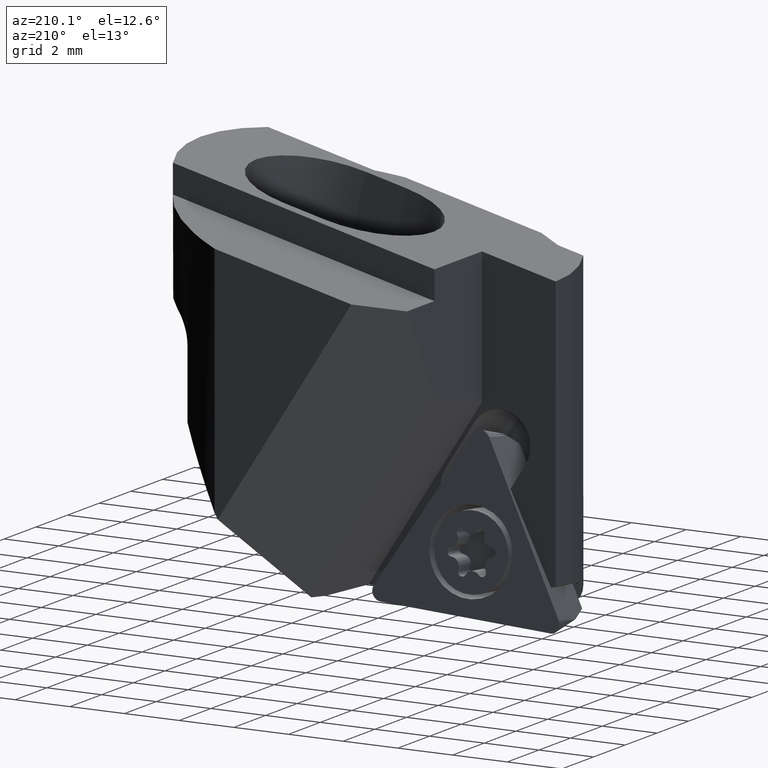
[diagram: clean part render]
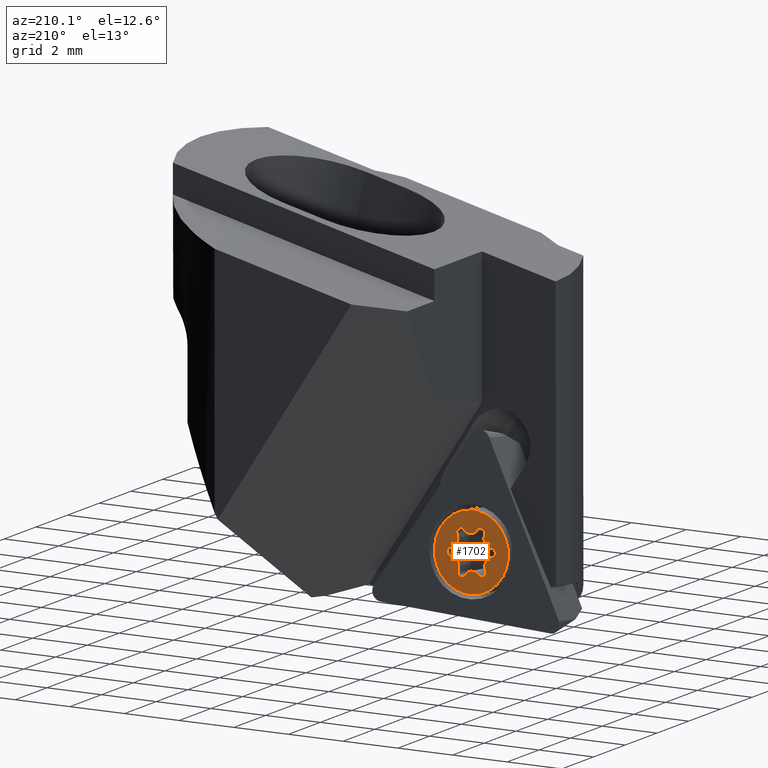
[diagram: same view with one face highlighted and labeled with its STEP entity id]
A machine part, auxiliary view. The second image highlights one B-rep face of the part: STEP entity #1702.
In plain terms, the highlighted planar face has unit normal (0.0046, -0.9962, -0.087).
Its self-contained STEP definition (entity closure, byte-faithful):
#836=VERTEX_POINT('NONE',#2392);
#862=EDGE_CURVE('NONE',#1880,#1708,#2420,.T.);
#884=VERTEX_POINT('NONE',#2444);
#938=VERTEX_POINT('NONE',#2512);
#1088=EDGE_CURVE('NONE',#2076,#1826,#2671,.T.);
#1096=EDGE_CURVE('NONE',#938,#1880,#2680,.T.);
#1108=VERTEX_POINT('',#2694);
#1120=EDGE_CURVE('NONE',#1108,#2336,#2706,.T.);
#1130=VERTEX_POINT('NONE',#2718);
#1154=EDGE_CURVE('NONE',#1826,#1894,#2745,.T.);
#1198=EDGE_CURVE('NONE',#884,#1798,#2794,.T.);
#1304=EDGE_CURVE('NONE',#1130,#1498,#2912,.T.);
#1346=EDGE_CURVE('NONE',#1818,#884,#2958,.T.);
#1436=VERTEX_POINT('NONE',#3058);
#1486=EDGE_CURVE('NONE',#1492,#1108,#3114,.T.);
#1492=VERTEX_POINT('NONE',#3121);
#1498=VERTEX_POINT('NONE',#3127);
#1514=VERTEX_POINT('',#3146);
#1634=EDGE_CURVE('NONE',#1870,#836,#3278,.T.);
#1658=EDGE_CURVE('NONE',#836,#1870,#3304,.T.);
#1702=ADVANCED_FACE('NONE',(#3354,#3355),#3356,.F.);
#1708=VERTEX_POINT('NONE',#3362);
#1720=EDGE_CURVE('NONE',#1798,#1492,#3375,.T.);
#1798=VERTEX_POINT('NONE',#3462);
#1818=VERTEX_POINT('NONE',#3486);
#1826=VERTEX_POINT('NONE',#3494);
#1870=VERTEX_POINT('NONE',#3541);
#1880=VERTEX_POINT('NONE',#3552);
#1894=VERTEX_POINT('',#3567);
#1934=EDGE_CURVE('NONE',#1708,#1130,#3610,.T.);
#1974=EDGE_CURVE('NONE',#2282,#938,#3651,.T.);
#2038=EDGE_CURVE('NONE',#2336,#2076,#3722,.T.);
#2076=VERTEX_POINT('NONE',#3763);
#2084=EDGE_CURVE('NONE',#1498,#1514,#3772,.T.);
#2116=EDGE_CURVE('NONE',#2190,#1436,#3804,.T.);
#2144=EDGE_CURVE('NONE',#1894,#2282,#3836,.T.);
#2158=EDGE_CURVE('NONE',#1436,#1818,#3851,.T.);
#2190=VERTEX_POINT('NONE',#3888);
#2282=VERTEX_POINT('NONE',#3994);
#2332=EDGE_CURVE('NONE',#1514,#2190,#4049,.T.);
#2336=VERTEX_POINT('NONE',#4053);
#2392=CARTESIAN_POINT('',(-3.73868990559212,0.472591263517776,-13.6196792960101));
#2420=CIRCLE('',#4151,0.3);
#2444=CARTESIAN_POINT('',(-4.34694733884504,0.334228737049748,-12.0678954503205));
#2512=CARTESIAN_POINT('',(-2.89543446549476,0.377913008862725,-12.4918236265573));
#2671=CIRCLE('',#5178,0.3);
#2680=CIRCLE('',#5192,0.15);
#2694=CARTESIAN_POINT('',(-4.05001426828631,0.4188227018781,-13.020574229776));
#2706=CIRCLE('',#5226,0.15);
#2718=CARTESIAN_POINT('',(-3.19236753605348,0.293319044034373,-11.5391448471018));
#2745=CIRCLE('',#5278,0.15);
#2794=CIRCLE('',#5351,0.15);
#2912=CIRCLE('',#5534,0.15);
#2958=CIRCLE('',#5593,0.3);
#3058=CARTESIAN_POINT('',(-3.91460869217,0.284544876928493,-11.4765690818002));
#3114=CIRCLE('',#5810,0.15);
#3121=CARTESIAN_POINT('',(-4.16858324547384,0.399016849716401,-12.800095566123));
#3127=CARTESIAN_POINT('',(-3.31806089146341,0.297132205026836,-11.5893765995041));
#3146=CARTESIAN_POINT('',(-3.56944760228328,0.304758527011763,-11.6898401043088));
#3278=CIRCLE('',#6081,1.35);
#3304=CIRCLE('',#6119,1.35);
#3354=FACE_OUTER_BOUND('',#6185,.T.);
#3355=FACE_BOUND('',#6186,.T.);
#3356=PLANE('',#6187);
#3362=CARTESIAN_POINT('',(-3.07379855886595,0.313124896196072,-11.7596235107548));
#3375=CIRCLE('',#6215,0.3);
#3462=CARTESIAN_POINT('',(-4.37289873535704,0.359963992406168,-12.3638145029988));
#3486=CARTESIAN_POINT('',(-4.06976872465056,0.301025324476768,-11.673331564064));
#3494=CARTESIAN_POINT('',(-3.4428268087987,0.42085898562289,-13.0120596542414));
#3541=CARTESIAN_POINT('',(-3.50369189874767,0.239550482394697,-10.9400397808677));
#3552=CARTESIAN_POINT('',(-2.86948306898275,0.352177753506305,-12.195904573879));
#3567=CARTESIAN_POINT('',(-3.3277731121698,0.42759686898398,-13.0831499950776));
#3610=CIRCLE('',#6521,0.15);
#3651=CIRCLE('',#6579,0.3);
#3722=CIRCLE('',#6674,0.3);
#3763=CARTESIAN_POINT('',(-3.67293420205651,0.40738321890071,-12.869878972569));
#3772=CIRCLE('',#6770,0.3);
#3804=CIRCLE('',#6838,0.15);
#3836=CIRCLE('',#6882,0.15);
#3851=CIRCLE('',#6900,0.15);
#3888=CARTESIAN_POINT('',(-3.79955499554109,0.291282760289583,-11.5476594226364));
#3994=CARTESIAN_POINT('',(-3.17261307968924,0.411116421435705,-12.8863875128138));
#4049=CIRCLE('',#7186,0.3);
#4053=CARTESIAN_POINT('',(-3.92432091287637,0.415009540885637,-12.9703424773737));
#4151=AXIS2_PLACEMENT_3D('',#7242,#7243,#7244);
#5178=AXIS2_PLACEMENT_3D('',#7547,#7548,#7549);
#5192=AXIS2_PLACEMENT_3D('',#7560,#7561,#7562);
#5226=AXIS2_PLACEMENT_3D('',#7592,#7593,#7594);
#5278=AXIS2_PLACEMENT_3D('',#7660,#7661,#7662);
#5351=AXIS2_PLACEMENT_3D('',#7725,#7726,#7727);
#5534=AXIS2_PLACEMENT_3D('',#7860,#7861,#7862);
#5593=AXIS2_PLACEMENT_3D('',#7924,#7925,#7926);
#5810=AXIS2_PLACEMENT_3D('',#8110,#8111,#8112);
#6081=AXIS2_PLACEMENT_3D('',#8301,#8302,#8303);
#6119=AXIS2_PLACEMENT_3D('',#8326,#8327,#8328);
#6185=EDGE_LOOP('',(#8396,#8397));
#6186=EDGE_LOOP('',(#8398,#8399,#8400,#8401,#8402,#8403,#8404,#8405,#8406,#8407,#8408,#8409,#8410,#8411,#8412,#8413,#8414,#8415));
#6187=AXIS2_PLACEMENT_3D('',#8416,#8417,#8418);
#6215=AXIS2_PLACEMENT_3D('',#8436,#8437,#8438);
#6521=AXIS2_PLACEMENT_3D('',#8695,#8696,#8697);
#6579=AXIS2_PLACEMENT_3D('',#8728,#8729,#8730);
#6674=AXIS2_PLACEMENT_3D('',#8811,#8812,#8813);
#6770=AXIS2_PLACEMENT_3D('',#8861,#8862,#8863);
#6838=AXIS2_PLACEMENT_3D('',#8881,#8882,#8883);
#6882=AXIS2_PLACEMENT_3D('',#8929,#8930,#8931);
#6900=AXIS2_PLACEMENT_3D('',#8951,#8952,#8953);
#7186=AXIS2_PLACEMENT_3D('',#9233,#9234,#9235);
#7242=CARTESIAN_POINT('',(-2.8105497148415,0.326843180394683,-11.9028431141561));
#7243=DIRECTION('',(-0.00456137913876212,0.996194698091746,0.0870362988312799));
#7244=DIRECTION('',(0.819211766247182,0.0536365989814144,-0.570977405237614));
#7547=CARTESIAN_POINT('',(-3.69904509170589,0.433276639025496,-13.1676166964737));
#7548=DIRECTION('',(-0.00456137913876213,0.996194698091746,0.08703629883128));
#7549=DIRECTION('',(-0.906248065078456,0.0326748014345416,-0.421481674444771));
#7560=CARTESIAN_POINT('',(-2.89894974605338,0.364845040062116,-12.3424353037405));
#7561=DIRECTION('',(0.00456137913876213,-0.996194698091746,-0.08703629883128));
#7562=DIRECTION('',(-0.08703629883128,0.0863114004159552,-0.992459079682376));
#7592=CARTESIAN_POINT('',(-4.03695882346161,0.405875991815707,-12.8717053678237));
#7593=DIRECTION('',(0.00456137913876213,-0.996194698091746,-0.08703629883128));
#7594=DIRECTION('',(-0.819211766247187,-0.053636598981414,0.570977405237608));
#7660=CARTESIAN_POINT('',(-3.31471766734511,0.414650158921587,-12.9342811331252));
#7661=DIRECTION('',(0.00456137913876213,-0.996194698091746,-0.08703629883128));
#7662=DIRECTION('',(-0.08703629883128,0.0863114004159552,-0.992459079682376));
#7725=CARTESIAN_POINT('',(-4.34343205828641,0.347296705850357,-12.2172837731373));
#7726=DIRECTION('',(0.00456137913876213,-0.996194698091746,-0.08703629883128));
#7727=DIRECTION('',(0.0870362988312728,-0.0863114004159553,0.992459079682377));
#7860=CARTESIAN_POINT('',(-3.20542298087818,0.306265754096766,-11.6880137090541));
#7861=DIRECTION('',(0.00456137913876213,-0.996194698091746,-0.08703629883128));
#7862=DIRECTION('',(0.819211766247182,0.0536365989814144,-0.570977405237614));
#7924=CARTESIAN_POINT('',(-4.35397789996229,0.30809279944853,-11.7691188046869));
#7925=DIRECTION('',(-0.00456137913876213,0.996194698091746,0.08703629883128));
#7926=DIRECTION('',(0.0870362988312732,-0.0863114004159553,0.992459079682377));
#8110=CARTESIAN_POINT('',(-4.03695882346161,0.405875991815707,-12.8717053678237));
#8111=DIRECTION('',(0.00456137913876213,-0.996194698091746,-0.08703629883128));
#8112=DIRECTION('',(-0.819211766247187,-0.053636598981414,0.570977405237608));
#8301=CARTESIAN_POINT('',(-3.6211909021699,0.356070872956236,-12.2798595384389));
#8302=DIRECTION('',(-0.00456137913876213,0.996194698091746,0.08703629883128));
#8303=DIRECTION('',(0.08703629883128,-0.0863114004159552,0.992459079682376));
#8326=CARTESIAN_POINT('',(-3.6211909021699,0.356070872956236,-12.2798595384389));
#8327=DIRECTION('',(-0.00456137913876213,0.996194698091746,0.08703629883128));
#8328=DIRECTION('',(0.08703629883128,-0.0863114004159552,0.992459079682376));
#8396=ORIENTED_EDGE('',*,*,#1634,.T.);
#8397=ORIENTED_EDGE('',*,*,#1658,.T.);
#8398=ORIENTED_EDGE('',*,*,#1096,.T.);
#8399=ORIENTED_EDGE('',*,*,#862,.T.);
#8400=ORIENTED_EDGE('',*,*,#1934,.T.);
#8401=ORIENTED_EDGE('',*,*,#1304,.T.);
#8402=ORIENTED_EDGE('',*,*,#2084,.T.);
#8403=ORIENTED_EDGE('',*,*,#2332,.T.);
#8404=ORIENTED_EDGE('',*,*,#2116,.T.);
#8405=ORIENTED_EDGE('',*,*,#2158,.T.);
#8406=ORIENTED_EDGE('',*,*,#1346,.T.);
#8407=ORIENTED_EDGE('',*,*,#1198,.T.);
#8408=ORIENTED_EDGE('',*,*,#1720,.T.);
#8409=ORIENTED_EDGE('',*,*,#1486,.T.);
#8410=ORIENTED_EDGE('',*,*,#1120,.T.);
#8411=ORIENTED_EDGE('',*,*,#2038,.T.);
#8412=ORIENTED_EDGE('',*,*,#1088,.T.);
#8413=ORIENTED_EDGE('',*,*,#1154,.T.);
#8414=ORIENTED_EDGE('',*,*,#2144,.T.);
#8415=ORIENTED_EDGE('',*,*,#1974,.T.);
#8416=CARTESIAN_POINT('',(-2.27632805974604,0.372408977222358,-12.3963799290004));
#8417=DIRECTION('',(0.00456137913876213,-0.996194698091746,-0.08703629883128));
#8418=DIRECTION('',(0.996194698091746,0.0121022994563861,-0.0863114004159553));
#8436=CARTESIAN_POINT('',(-4.43183208949829,0.38529856551779,-12.6568759627217));
#8437=DIRECTION('',(-0.00456137913876214,0.996194698091746,0.08703629883128));
#8438=DIRECTION('',(-0.819211766247186,-0.053636598981414,0.570977405237609));
#8695=CARTESIAN_POINT('',(-3.20542298087818,0.306265754096766,-11.6880137090541));
#8696=DIRECTION('',(0.00456137913876213,-0.996194698091746,-0.08703629883128));
#8697=DIRECTION('',(0.819211766247182,0.0536365989814144,-0.570977405237614));
#8728=CARTESIAN_POINT('',(-2.8884039043775,0.404048946463943,-12.7906002721909));
#8729=DIRECTION('',(-0.00456137913876213,0.996194698091746,0.08703629883128));
#8730=DIRECTION('',(-0.08703629883128,0.0863114004159552,-0.992459079682376));
#8811=CARTESIAN_POINT('',(-3.69904509170589,0.433276639025496,-13.1676166964737));
#8812=DIRECTION('',(-0.00456137913876213,0.996194698091746,0.08703629883128));
#8813=DIRECTION('',(-0.906248065078456,0.0326748014345416,-0.421481674444771));
#8861=CARTESIAN_POINT('',(-3.54333671263389,0.278865106886977,-11.3921023804041));
#8862=DIRECTION('',(-0.00456137913876213,0.996194698091746,0.08703629883128));
#8863=DIRECTION('',(0.906248065078459,-0.032674801434541,0.421481674444764));
#8881=CARTESIAN_POINT('',(-3.92766413699469,0.297491586990886,-11.6254379437526));
#8882=DIRECTION('',(0.00456137913876212,-0.996194698091746,-0.0870362988312799));
#8883=DIRECTION('',(0.906248065078459,-0.032674801434541,0.421481674444764));
#8929=CARTESIAN_POINT('',(-3.31471766734511,0.414650158921587,-12.9342811331252));
#8930=DIRECTION('',(0.00456137913876213,-0.996194698091746,-0.08703629883128));
#8931=DIRECTION('',(-0.08703629883128,0.0863114004159552,-0.992459079682376));
#8951=CARTESIAN_POINT('',(-3.92766413699469,0.297491586990886,-11.6254379437526));
#8952=DIRECTION('',(0.00456137913876212,-0.996194698091746,-0.0870362988312799));
#8953=DIRECTION('',(0.906248065078459,-0.032674801434541,0.421481674444764));
#9233=CARTESIAN_POINT('',(-3.54333671263389,0.278865106886977,-11.3921023804041));
#9234=DIRECTION('',(-0.00456137913876213,0.996194698091746,0.08703629883128));
#9235=DIRECTION('',(0.906248065078459,-0.032674801434541,0.421481674444764));